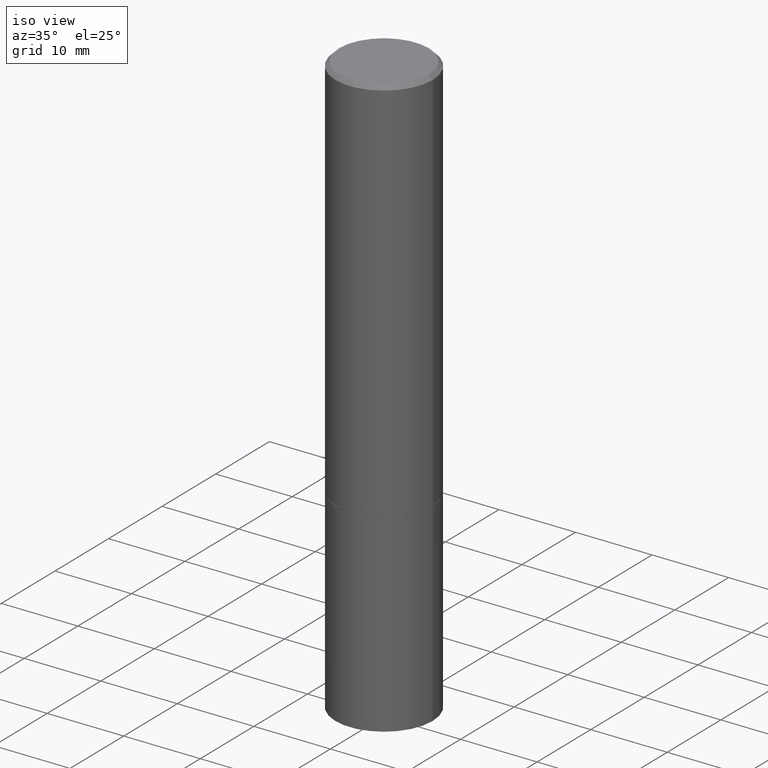
[diagram: clean part render]
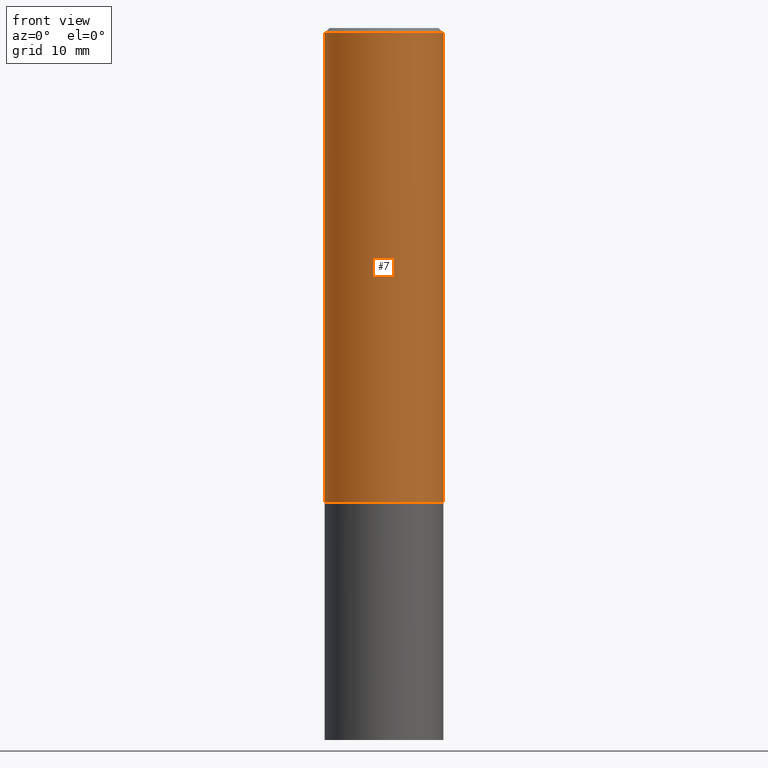
[diagram: tour spotlight — one face highlighted and labeled with its STEP entity id]
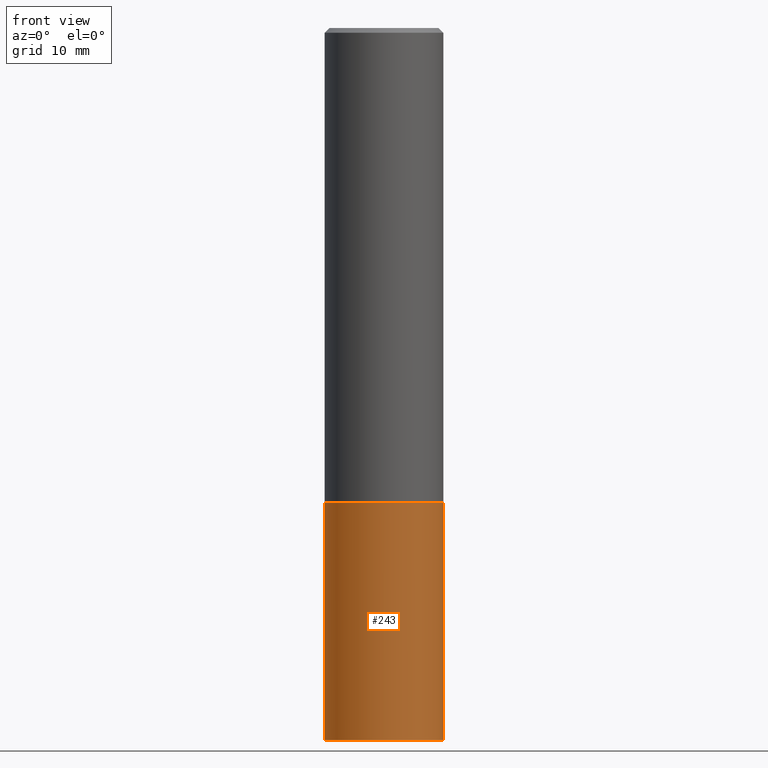
[diagram: tour spotlight — one face highlighted and labeled with its STEP entity id]
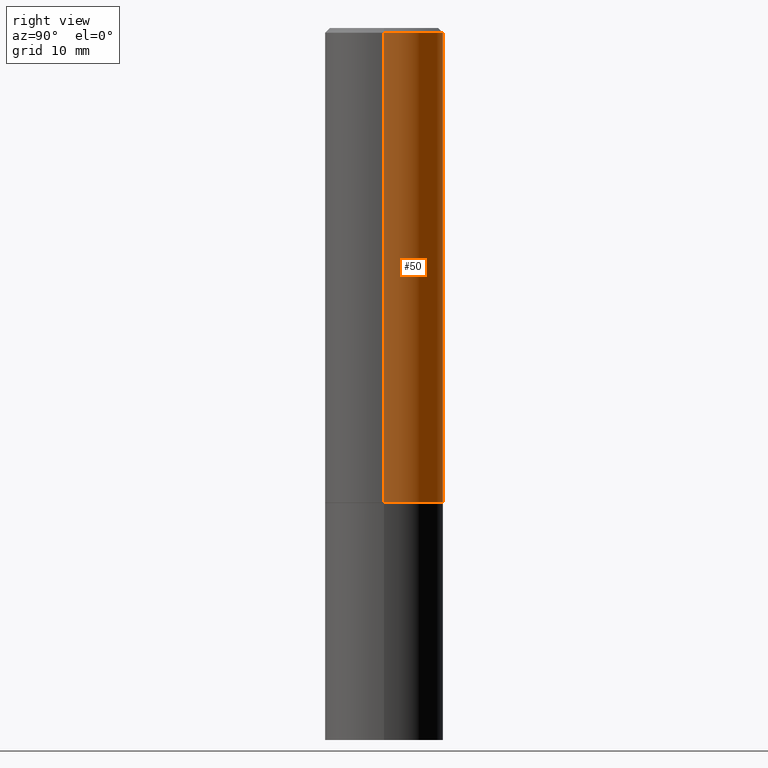
[diagram: tour spotlight — one face highlighted and labeled with its STEP entity id]
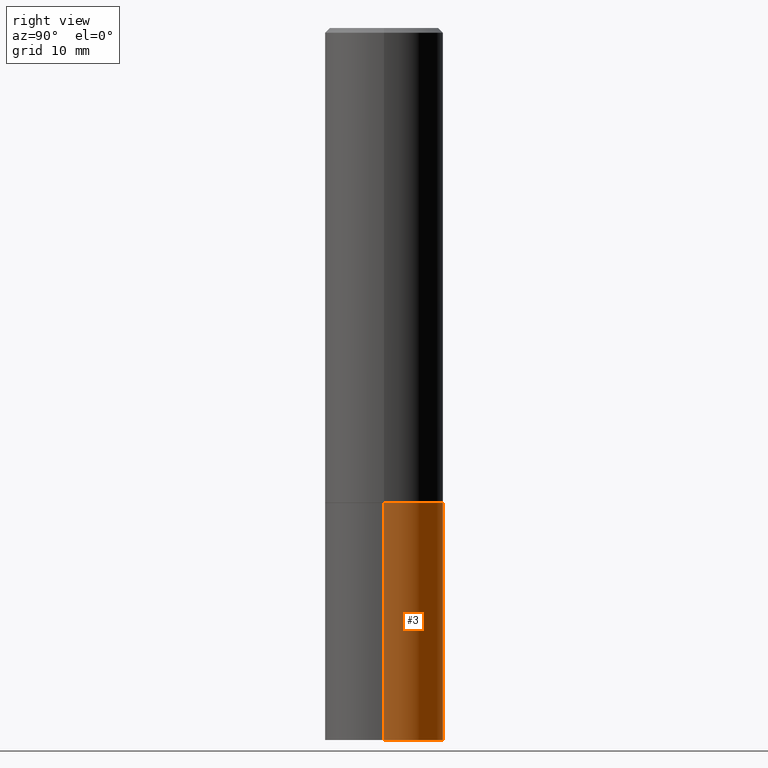
[diagram: tour spotlight — one face highlighted and labeled with its STEP entity id]
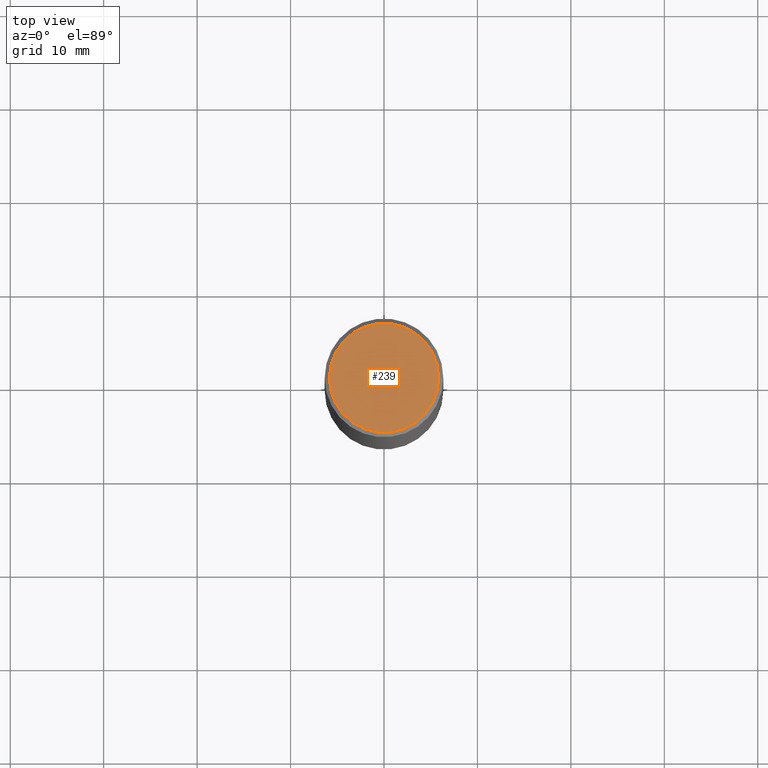
[diagram: tour spotlight — one face highlighted and labeled with its STEP entity id]
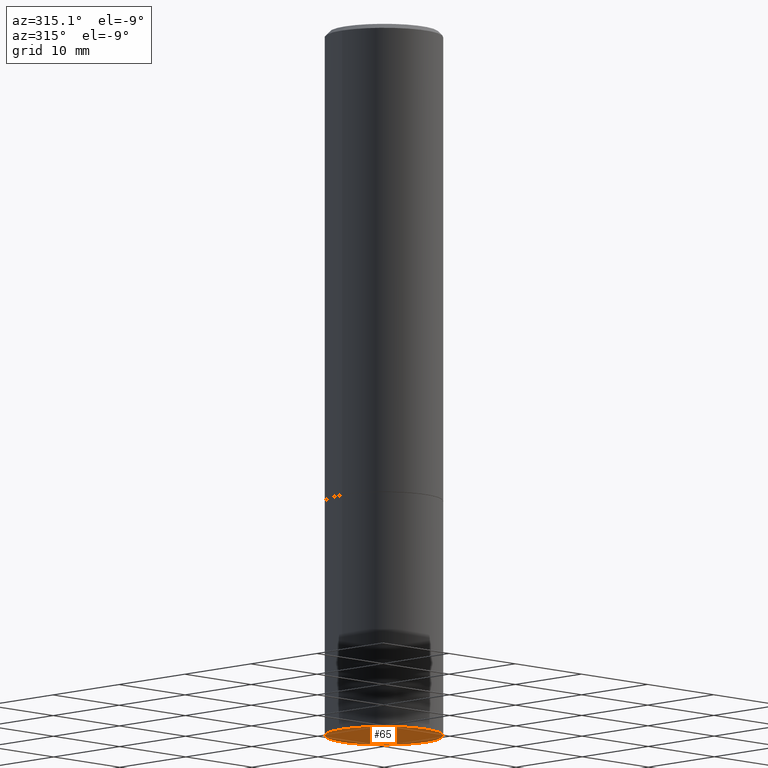
[diagram: tour spotlight — one face highlighted and labeled with its STEP entity id]
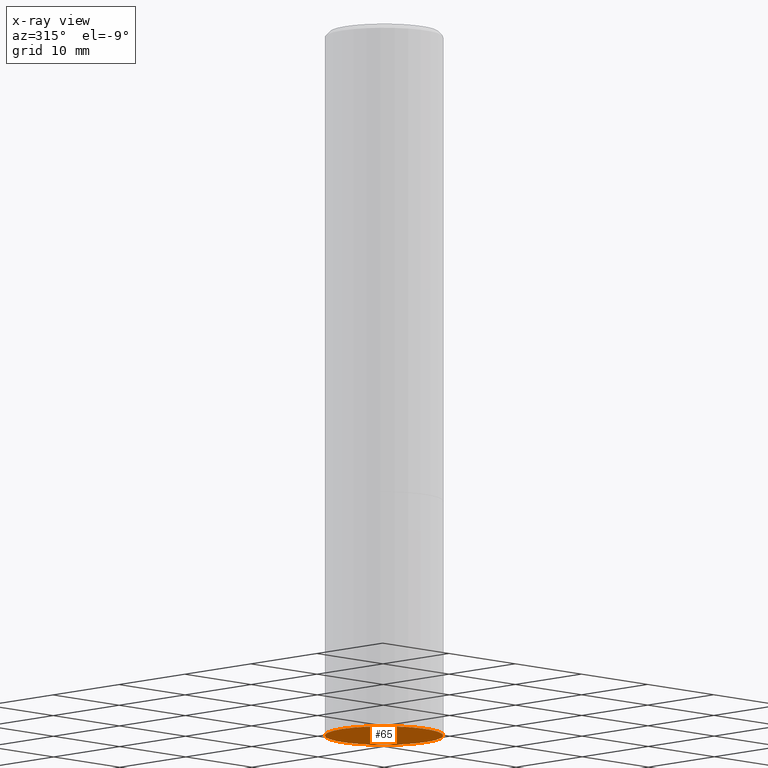
[diagram: x-ray of the same camera — body ghosted, this tour face saturated]
A machine part: a face-by-face anatomy tour. The part has 12 B-rep faces; the first image is the clean iso view, then the 6 largest visible faces are spotlighted one at a time (largest first), each with its STEP entity span.

Face 1 — front view, entity #7. In plain terms, the highlighted cylindrical surface (partial cylindrical patch) has radius 6.35 mm, axis along (-0, 0, 1).
Definition (entity closure, byte-faithful):
#7 = ADVANCED_FACE ( 'NONE', ( #191 ), #263, .T. ) ;
#9 = DIRECTION ( 'NONE',  ( -2.445468806185136597E-29, 3.491481338843145583E-15, 1.000000000000000000 ) ) ;
#15 = ORIENTED_EDGE ( 'NONE', *, *, #43, .T. ) ;
#23 = CARTESIAN_POINT ( 'NONE',  ( -0.2500000000000000000, -1.748293572161902502E-15, -1.999000000000000110 ) ) ;
#27 = DIRECTION ( 'NONE',  ( -2.445468806185136597E-29, 3.491481338843145583E-15, 1.000000000000000000 ) ) ;
#32 = VECTOR ( 'NONE', #349, 39.37007874015748143 ) ;
#40 = CARTESIAN_POINT ( 'NONE',  ( 4.888492143564088712E-29, -6.979471196347448158E-15, -1.999000000000000110 ) ) ;
#43 = EDGE_CURVE ( 'NONE', #181, #56, #303, .T. ) ;
#49 = VERTEX_POINT ( 'NONE', #23 ) ;
#56 = VERTEX_POINT ( 'NONE', #307 ) ;
#59 = CARTESIAN_POINT ( 'NONE',  ( 4.890937612370290675E-31, -6.982962677686316261E-17, -0.02000000000000007327 ) ) ;
#89 = CIRCLE ( 'NONE', #228, 0.2499999999999996669 ) ;
#101 = DIRECTION ( 'NONE',  ( 1.000000000000000000, -6.982962677686266711E-15, 0.000000000000000000 ) ) ;
#110 = ORIENTED_EDGE ( 'NONE', *, *, #154, .T. ) ;
#118 = VERTEX_POINT ( 'NONE', #199 ) ;
#124 = VECTOR ( 'NONE', #178, 39.37007874015748143 ) ;
#131 = CIRCLE ( 'NONE', #314, 0.2500000000000000000 ) ;
#148 = AXIS2_PLACEMENT_3D ( 'NONE', #299, #27, #341 ) ;
#153 = DIRECTION ( 'NONE',  ( -2.445468806185136597E-29, 3.491481338843145583E-15, 1.000000000000000000 ) ) ;
#154 = EDGE_CURVE ( 'NONE', #49, #181, #131, .T. ) ;
#174 = CARTESIAN_POINT ( 'NONE',  ( 0.2499999999999998335, -1.745740669421565494E-15, 1.219044193948983107E-29 ) ) ;
#178 = DIRECTION ( 'NONE',  ( -2.445468806185136877E-29, 3.491481338843145188E-15, 1.000000000000000000 ) ) ;
#181 = VERTEX_POINT ( 'NONE', #323 ) ;
#191 = FACE_OUTER_BOUND ( 'NONE', #205, .T. ) ;
#199 = CARTESIAN_POINT ( 'NONE',  ( -0.2499999999999996669, 1.675911042644701210E-15, -0.02000000000000007327 ) ) ;
#202 = EDGE_CURVE ( 'NONE', #49, #118, #320, .T. ) ;
#205 = EDGE_LOOP ( 'NONE', ( #212, #110, #15, #227 ) ) ;
#212 = ORIENTED_EDGE ( 'NONE', *, *, #202, .F. ) ;
#227 = ORIENTED_EDGE ( 'NONE', *, *, #273, .F. ) ;
#228 = AXIS2_PLACEMENT_3D ( 'NONE', #59, #153, #259 ) ;
#251 = CARTESIAN_POINT ( 'NONE',  ( -0.2499999999999998335, 1.776356839400249281E-15, -1.229733772563725605E-29 ) ) ;
#259 = DIRECTION ( 'NONE',  ( 1.000000000000000000, -6.982962677686266711E-15, 0.000000000000000000 ) ) ;
#263 = CYLINDRICAL_SURFACE ( 'NONE', #148, 0.2499999999999998335 ) ;
#273 = EDGE_CURVE ( 'NONE', #118, #56, #89, .T. ) ;
#299 = CARTESIAN_POINT ( 'NONE',  ( 0.000000000000000000, 0.000000000000000000, 0.000000000000000000 ) ) ;
#303 = LINE ( 'NONE', #174, #124 ) ;
#307 = CARTESIAN_POINT ( 'NONE',  ( 0.2499999999999996669, -1.784954126219743428E-15, -0.02000000000000007327 ) ) ;
#314 = AXIS2_PLACEMENT_3D ( 'NONE', #40, #9, #101 ) ;
#320 = LINE ( 'NONE', #251, #32 ) ;
#323 = CARTESIAN_POINT ( 'NONE',  ( 0.2500000000000000000, -8.725211865769015625E-15, -1.999000000000000110 ) ) ;
#341 = DIRECTION ( 'NONE',  ( 1.000000000000000000, -6.982962677686266711E-15, 4.876176775795935793E-29 ) ) ;
#349 = DIRECTION ( 'NONE',  ( -2.445468806185136877E-29, 3.491481338843145188E-15, 1.000000000000000000 ) ) ;

Face 2 — front view, entity #243. In plain terms, the highlighted cylindrical surface (partial cylindrical patch) has radius 6.35 mm, axis along (-0, 0, 1).
Definition (entity closure, byte-faithful):
#8 = DIRECTION ( 'NONE',  ( -2.445468806185136877E-29, 3.491481338843145188E-15, 1.000000000000000000 ) ) ;
#13 = CARTESIAN_POINT ( 'NONE',  ( -0.2500000000000000000, -6.952346507707613689E-15, -2.000000000000000444 ) ) ;
#19 = FACE_OUTER_BOUND ( 'NONE', #123, .T. ) ;
#22 = VERTEX_POINT ( 'NONE', #130 ) ;
#39 = ORIENTED_EDGE ( 'NONE', *, *, #220, .T. ) ;
#57 = LINE ( 'NONE', #185, #287 ) ;
#69 = DIRECTION ( 'NONE',  ( -2.445468806185136597E-29, 3.491481338843145583E-15, 1.000000000000000000 ) ) ;
#84 = LINE ( 'NONE', #276, #301 ) ;
#87 = CARTESIAN_POINT ( 'NONE',  ( 0.000000000000000000, 0.000000000000000000, 0.000000000000000000 ) ) ;
#98 = CIRCLE ( 'NONE', #183, 0.2500000000000000000 ) ;
#102 = VERTEX_POINT ( 'NONE', #171 ) ;
#107 = CIRCLE ( 'NONE', #332, 0.2500000000000000000 ) ;
#108 = DIRECTION ( 'NONE',  ( 1.000000000000000000, -6.982962677686262766E-15, 0.000000000000000000 ) ) ;
#119 = DIRECTION ( 'NONE',  ( 1.000000000000000000, -6.982962677686266711E-15, 4.876176775795935793E-29 ) ) ;
#122 = CYLINDRICAL_SURFACE ( 'NONE', #173, 0.2500000000000000000 ) ;
#123 = EDGE_LOOP ( 'NONE', ( #257, #39, #285, #360 ) ) ;
#130 = CARTESIAN_POINT ( 'NONE',  ( -0.2500000000000000000, -6.952346507707613689E-15, -3.000000000000000444 ) ) ;
#139 = CARTESIAN_POINT ( 'NONE',  ( 7.336406418555409790E-29, -1.047444401652943635E-14, -3.000000000000000444 ) ) ;
#143 = EDGE_CURVE ( 'NONE', #22, #339, #57, .T. ) ;
#150 = DIRECTION ( 'NONE',  ( -2.445468806185136597E-29, 3.491481338843145583E-15, 1.000000000000000000 ) ) ;
#167 = CARTESIAN_POINT ( 'NONE',  ( 0.2500000000000000000, -8.728703347107858632E-15, -2.000000000000000444 ) ) ;
#171 = CARTESIAN_POINT ( 'NONE',  ( 0.2500000000000000000, -1.222018468595100303E-14, -3.000000000000000444 ) ) ;
#173 = AXIS2_PLACEMENT_3D ( 'NONE', #87, #150, #119 ) ;
#183 = AXIS2_PLACEMENT_3D ( 'NONE', #186, #359, #236 ) ;
#185 = CARTESIAN_POINT ( 'NONE',  ( -0.2500000000000000000, 1.776356839400250465E-15, -1.229733772563726445E-29 ) ) ;
#186 = CARTESIAN_POINT ( 'NONE',  ( 4.890937612370273754E-29, -6.982962677686291954E-15, -2.000000000000000444 ) ) ;
#206 = VERTEX_POINT ( 'NONE', #167 ) ;
#220 = EDGE_CURVE ( 'NONE', #22, #102, #107, .T. ) ;
#236 = DIRECTION ( 'NONE',  ( 1.000000000000000000, -6.982962677686266711E-15, 0.000000000000000000 ) ) ;
#243 = ADVANCED_FACE ( 'NONE', ( #19 ), #122, .T. ) ;
#257 = ORIENTED_EDGE ( 'NONE', *, *, #143, .F. ) ;
#274 = DIRECTION ( 'NONE',  ( -2.445468806185136877E-29, 3.491481338843145188E-15, 1.000000000000000000 ) ) ;
#276 = CARTESIAN_POINT ( 'NONE',  ( 0.2500000000000000000, -1.745740669421566678E-15, 1.219044193948983948E-29 ) ) ;
#284 = EDGE_CURVE ( 'NONE', #339, #206, #98, .T. ) ;
#285 = ORIENTED_EDGE ( 'NONE', *, *, #300, .T. ) ;
#287 = VECTOR ( 'NONE', #274, 39.37007874015748143 ) ;
#300 = EDGE_CURVE ( 'NONE', #102, #206, #84, .T. ) ;
#301 = VECTOR ( 'NONE', #8, 39.37007874015748143 ) ;
#332 = AXIS2_PLACEMENT_3D ( 'NONE', #139, #69, #108 ) ;
#339 = VERTEX_POINT ( 'NONE', #13 ) ;
#359 = DIRECTION ( 'NONE',  ( -2.445468806185136597E-29, 3.491481338843145583E-15, 1.000000000000000000 ) ) ;
#360 = ORIENTED_EDGE ( 'NONE', *, *, #284, .F. ) ;

Face 3 — right view, entity #50. In plain terms, the highlighted cylindrical surface (partial cylindrical patch) has radius 6.35 mm, axis along (-0, 0, 1).
Definition (entity closure, byte-faithful):
#17 = ORIENTED_EDGE ( 'NONE', *, *, #179, .T. ) ;
#23 = CARTESIAN_POINT ( 'NONE',  ( -0.2500000000000000000, -1.748293572161902502E-15, -1.999000000000000110 ) ) ;
#32 = VECTOR ( 'NONE', #349, 39.37007874015748143 ) ;
#36 = CARTESIAN_POINT ( 'NONE',  ( 4.888492143564088712E-29, -6.979471196347448158E-15, -1.999000000000000110 ) ) ;
#43 = EDGE_CURVE ( 'NONE', #181, #56, #303, .T. ) ;
#47 = DIRECTION ( 'NONE',  ( 1.000000000000000000, -6.982962677686266711E-15, 0.000000000000000000 ) ) ;
#49 = VERTEX_POINT ( 'NONE', #23 ) ;
#50 = ADVANCED_FACE ( 'NONE', ( #75 ), #265, .T. ) ;
#55 = DIRECTION ( 'NONE',  ( 1.000000000000000000, -6.982962677686266711E-15, 4.876176775795935793E-29 ) ) ;
#56 = VERTEX_POINT ( 'NONE', #307 ) ;
#70 = CARTESIAN_POINT ( 'NONE',  ( 4.890937612370290675E-31, -6.982962677686316261E-17, -0.02000000000000007327 ) ) ;
#75 = FACE_OUTER_BOUND ( 'NONE', #342, .T. ) ;
#103 = EDGE_CURVE ( 'NONE', #56, #118, #277, .T. ) ;
#104 = ORIENTED_EDGE ( 'NONE', *, *, #43, .F. ) ;
#115 = AXIS2_PLACEMENT_3D ( 'NONE', #70, #279, #47 ) ;
#118 = VERTEX_POINT ( 'NONE', #199 ) ;
#124 = VECTOR ( 'NONE', #178, 39.37007874015748143 ) ;
#125 = AXIS2_PLACEMENT_3D ( 'NONE', #36, #161, #133 ) ;
#133 = DIRECTION ( 'NONE',  ( 1.000000000000000000, -6.982962677686266711E-15, 0.000000000000000000 ) ) ;
#161 = DIRECTION ( 'NONE',  ( -2.445468806185136597E-29, 3.491481338843145583E-15, 1.000000000000000000 ) ) ;
#174 = CARTESIAN_POINT ( 'NONE',  ( 0.2499999999999998335, -1.745740669421565494E-15, 1.219044193948983107E-29 ) ) ;
#178 = DIRECTION ( 'NONE',  ( -2.445468806185136877E-29, 3.491481338843145188E-15, 1.000000000000000000 ) ) ;
#179 = EDGE_CURVE ( 'NONE', #181, #49, #353, .T. ) ;
#181 = VERTEX_POINT ( 'NONE', #323 ) ;
#197 = ORIENTED_EDGE ( 'NONE', *, *, #202, .T. ) ;
#199 = CARTESIAN_POINT ( 'NONE',  ( -0.2499999999999996669, 1.675911042644701210E-15, -0.02000000000000007327 ) ) ;
#202 = EDGE_CURVE ( 'NONE', #49, #118, #320, .T. ) ;
#218 = AXIS2_PLACEMENT_3D ( 'NONE', #245, #361, #55 ) ;
#229 = ORIENTED_EDGE ( 'NONE', *, *, #103, .F. ) ;
#245 = CARTESIAN_POINT ( 'NONE',  ( 0.000000000000000000, 0.000000000000000000, 0.000000000000000000 ) ) ;
#251 = CARTESIAN_POINT ( 'NONE',  ( -0.2499999999999998335, 1.776356839400249281E-15, -1.229733772563725605E-29 ) ) ;
#265 = CYLINDRICAL_SURFACE ( 'NONE', #218, 0.2499999999999998335 ) ;
#277 = CIRCLE ( 'NONE', #115, 0.2499999999999996669 ) ;
#279 = DIRECTION ( 'NONE',  ( -2.445468806185136597E-29, 3.491481338843145583E-15, 1.000000000000000000 ) ) ;
#303 = LINE ( 'NONE', #174, #124 ) ;
#307 = CARTESIAN_POINT ( 'NONE',  ( 0.2499999999999996669, -1.784954126219743428E-15, -0.02000000000000007327 ) ) ;
#320 = LINE ( 'NONE', #251, #32 ) ;
#323 = CARTESIAN_POINT ( 'NONE',  ( 0.2500000000000000000, -8.725211865769015625E-15, -1.999000000000000110 ) ) ;
#342 = EDGE_LOOP ( 'NONE', ( #17, #197, #229, #104 ) ) ;
#349 = DIRECTION ( 'NONE',  ( -2.445468806185136877E-29, 3.491481338843145188E-15, 1.000000000000000000 ) ) ;
#353 = CIRCLE ( 'NONE', #125, 0.2500000000000000000 ) ;
#361 = DIRECTION ( 'NONE',  ( -2.445468806185136597E-29, 3.491481338843145583E-15, 1.000000000000000000 ) ) ;

Face 4 — right view, entity #3. In plain terms, the highlighted cylindrical surface (partial cylindrical patch) has radius 6.35 mm, axis along (-0, 0, 1).
Definition (entity closure, byte-faithful):
#3 = ADVANCED_FACE ( 'NONE', ( #180 ), #85, .T. ) ;
#8 = DIRECTION ( 'NONE',  ( -2.445468806185136877E-29, 3.491481338843145188E-15, 1.000000000000000000 ) ) ;
#13 = CARTESIAN_POINT ( 'NONE',  ( -0.2500000000000000000, -6.952346507707613689E-15, -2.000000000000000444 ) ) ;
#22 = VERTEX_POINT ( 'NONE', #130 ) ;
#25 = AXIS2_PLACEMENT_3D ( 'NONE', #210, #62, #159 ) ;
#35 = CARTESIAN_POINT ( 'NONE',  ( 7.336406418555409790E-29, -1.047444401652943635E-14, -3.000000000000000444 ) ) ;
#38 = ORIENTED_EDGE ( 'NONE', *, *, #184, .T. ) ;
#51 = ORIENTED_EDGE ( 'NONE', *, *, #352, .F. ) ;
#57 = LINE ( 'NONE', #185, #287 ) ;
#62 = DIRECTION ( 'NONE',  ( -2.445468806185136597E-29, 3.491481338843145583E-15, 1.000000000000000000 ) ) ;
#63 = DIRECTION ( 'NONE',  ( -2.445468806185136597E-29, 3.491481338843145583E-15, 1.000000000000000000 ) ) ;
#82 = DIRECTION ( 'NONE',  ( -2.445468806185136597E-29, 3.491481338843145583E-15, 1.000000000000000000 ) ) ;
#84 = LINE ( 'NONE', #276, #301 ) ;
#85 = CYLINDRICAL_SURFACE ( 'NONE', #25, 0.2500000000000000000 ) ;
#86 = ORIENTED_EDGE ( 'NONE', *, *, #143, .T. ) ;
#99 = EDGE_LOOP ( 'NONE', ( #38, #86, #51, #211 ) ) ;
#102 = VERTEX_POINT ( 'NONE', #171 ) ;
#130 = CARTESIAN_POINT ( 'NONE',  ( -0.2500000000000000000, -6.952346507707613689E-15, -3.000000000000000444 ) ) ;
#143 = EDGE_CURVE ( 'NONE', #22, #339, #57, .T. ) ;
#159 = DIRECTION ( 'NONE',  ( 1.000000000000000000, -6.982962677686266711E-15, 4.876176775795935793E-29 ) ) ;
#164 = DIRECTION ( 'NONE',  ( 1.000000000000000000, -6.982962677686262766E-15, 0.000000000000000000 ) ) ;
#167 = CARTESIAN_POINT ( 'NONE',  ( 0.2500000000000000000, -8.728703347107858632E-15, -2.000000000000000444 ) ) ;
#171 = CARTESIAN_POINT ( 'NONE',  ( 0.2500000000000000000, -1.222018468595100303E-14, -3.000000000000000444 ) ) ;
#175 = DIRECTION ( 'NONE',  ( 1.000000000000000000, -6.982962677686266711E-15, 0.000000000000000000 ) ) ;
#180 = FACE_OUTER_BOUND ( 'NONE', #99, .T. ) ;
#184 = EDGE_CURVE ( 'NONE', #102, #22, #187, .T. ) ;
#185 = CARTESIAN_POINT ( 'NONE',  ( -0.2500000000000000000, 1.776356839400250465E-15, -1.229733772563726445E-29 ) ) ;
#187 = CIRCLE ( 'NONE', #213, 0.2500000000000000000 ) ;
#206 = VERTEX_POINT ( 'NONE', #167 ) ;
#210 = CARTESIAN_POINT ( 'NONE',  ( 0.000000000000000000, 0.000000000000000000, 0.000000000000000000 ) ) ;
#211 = ORIENTED_EDGE ( 'NONE', *, *, #300, .F. ) ;
#213 = AXIS2_PLACEMENT_3D ( 'NONE', #35, #63, #164 ) ;
#269 = AXIS2_PLACEMENT_3D ( 'NONE', #328, #82, #175 ) ;
#274 = DIRECTION ( 'NONE',  ( -2.445468806185136877E-29, 3.491481338843145188E-15, 1.000000000000000000 ) ) ;
#276 = CARTESIAN_POINT ( 'NONE',  ( 0.2500000000000000000, -1.745740669421566678E-15, 1.219044193948983948E-29 ) ) ;
#287 = VECTOR ( 'NONE', #274, 39.37007874015748143 ) ;
#300 = EDGE_CURVE ( 'NONE', #102, #206, #84, .T. ) ;
#301 = VECTOR ( 'NONE', #8, 39.37007874015748143 ) ;
#328 = CARTESIAN_POINT ( 'NONE',  ( 4.890937612370273754E-29, -6.982962677686291954E-15, -2.000000000000000444 ) ) ;
#339 = VERTEX_POINT ( 'NONE', #13 ) ;
#350 = CIRCLE ( 'NONE', #269, 0.2500000000000000000 ) ;
#352 = EDGE_CURVE ( 'NONE', #206, #339, #350, .T. ) ;

Face 5 — top view, entity #239. In plain terms, the highlighted planar face has unit normal (0, -0, -1).
Definition (entity closure, byte-faithful):
#31 = DIRECTION ( 'NONE',  ( 1.000000000000000000, -6.982962677686267499E-15, 4.876225828469316729E-29 ) ) ;
#41 = FACE_OUTER_BOUND ( 'NONE', #109, .T. ) ;
#79 = CARTESIAN_POINT ( 'NONE',  ( -0.2299999999999996214, 1.640996229256269955E-15, 4.268512490089056766E-18 ) ) ;
#81 = DIRECTION ( 'NONE',  ( -1.000000000000000000, 6.982962677686265922E-15, -4.876176775795935793E-29 ) ) ;
#91 = CARTESIAN_POINT ( 'NONE',  ( -1.043851414335219820E-46, 1.490343170380447200E-32, 4.268512490100411279E-18 ) ) ;
#109 = EDGE_LOOP ( 'NONE', ( #147, #289 ) ) ;
#111 = DIRECTION ( 'NONE',  ( 2.438088387897960049E-29, -3.491481338843145188E-15, -1.000000000000000000 ) ) ;
#138 = CIRCLE ( 'NONE', #151, 0.2299999999999996214 ) ;
#145 = DIRECTION ( 'NONE',  ( -2.445468806185136597E-29, 3.491481338843145583E-15, 1.000000000000000000 ) ) ;
#147 = ORIENTED_EDGE ( 'NONE', *, *, #340, .T. ) ;
#151 = AXIS2_PLACEMENT_3D ( 'NONE', #354, #145, #335 ) ;
#157 = VERTEX_POINT ( 'NONE', #79 ) ;
#158 = EDGE_CURVE ( 'NONE', #176, #157, #240, .T. ) ;
#176 = VERTEX_POINT ( 'NONE', #271 ) ;
#237 = DIRECTION ( 'NONE',  ( -2.445468806185136597E-29, 3.491481338843145583E-15, 1.000000000000000000 ) ) ;
#239 = ADVANCED_FACE ( 'NONE', ( #41 ), #254, .F. ) ;
#240 = CIRCLE ( 'NONE', #282, 0.2299999999999996214 ) ;
#254 = PLANE ( 'NONE',  #321 ) ;
#271 = CARTESIAN_POINT ( 'NONE',  ( 0.2299999999999996214, -1.681434332853596842E-15, 4.268512490111905999E-18 ) ) ;
#281 = CARTESIAN_POINT ( 'NONE',  ( 1.606081415867838504E-15, 0.2299999999999996214, -8.009064516888719966E-16 ) ) ;
#282 = AXIS2_PLACEMENT_3D ( 'NONE', #91, #237, #31 ) ;
#289 = ORIENTED_EDGE ( 'NONE', *, *, #158, .T. ) ;
#321 = AXIS2_PLACEMENT_3D ( 'NONE', #281, #111, #81 ) ;
#335 = DIRECTION ( 'NONE',  ( 1.000000000000000000, -6.982962677686267499E-15, 4.876225828469316729E-29 ) ) ;
#340 = EDGE_CURVE ( 'NONE', #157, #176, #138, .T. ) ;
#354 = CARTESIAN_POINT ( 'NONE',  ( -1.043851414335219820E-46, 1.490343170380447200E-32, 4.268512490100411279E-18 ) ) ;

Face 6 — auxiliary view, entity #65. An x-ray twin of the same camera follows (body ghosted, this face saturated) — the face is partly hidden behind the body. In plain terms, the highlighted planar face has unit normal (0, -0, -1).
Definition (entity closure, byte-faithful):
#22 = VERTEX_POINT ( 'NONE', #130 ) ;
#35 = CARTESIAN_POINT ( 'NONE',  ( 7.336406418555409790E-29, -1.047444401652943635E-14, -3.000000000000000444 ) ) ;
#63 = DIRECTION ( 'NONE',  ( -2.445468806185136597E-29, 3.491481338843145583E-15, 1.000000000000000000 ) ) ;
#65 = ADVANCED_FACE ( 'NONE', ( #260 ), #105, .T. ) ;
#69 = DIRECTION ( 'NONE',  ( -2.445468806185136597E-29, 3.491481338843145583E-15, 1.000000000000000000 ) ) ;
#102 = VERTEX_POINT ( 'NONE', #171 ) ;
#105 = PLANE ( 'NONE',  #136 ) ;
#107 = CIRCLE ( 'NONE', #332, 0.2500000000000000000 ) ;
#108 = DIRECTION ( 'NONE',  ( 1.000000000000000000, -6.982962677686262766E-15, 0.000000000000000000 ) ) ;
#130 = CARTESIAN_POINT ( 'NONE',  ( -0.2500000000000000000, -6.952346507707613689E-15, -3.000000000000000444 ) ) ;
#136 = AXIS2_PLACEMENT_3D ( 'NONE', #209, #170, #310 ) ;
#139 = CARTESIAN_POINT ( 'NONE',  ( 7.336406418555409790E-29, -1.047444401652943635E-14, -3.000000000000000444 ) ) ;
#149 = ORIENTED_EDGE ( 'NONE', *, *, #184, .F. ) ;
#164 = DIRECTION ( 'NONE',  ( 1.000000000000000000, -6.982962677686262766E-15, 0.000000000000000000 ) ) ;
#170 = DIRECTION ( 'NONE',  ( 2.438088387897960049E-29, -3.491481338843145188E-15, -1.000000000000000000 ) ) ;
#171 = CARTESIAN_POINT ( 'NONE',  ( 0.2500000000000000000, -1.222018468595100303E-14, -3.000000000000000444 ) ) ;
#184 = EDGE_CURVE ( 'NONE', #102, #22, #187, .T. ) ;
#187 = CIRCLE ( 'NONE', #213, 0.2500000000000000000 ) ;
#190 = EDGE_LOOP ( 'NONE', ( #149, #355 ) ) ;
#209 = CARTESIAN_POINT ( 'NONE',  ( 1.745740669421639647E-15, 0.2499999999999895084, -3.000000000000001332 ) ) ;
#213 = AXIS2_PLACEMENT_3D ( 'NONE', #35, #63, #164 ) ;
#220 = EDGE_CURVE ( 'NONE', #22, #102, #107, .T. ) ;
#260 = FACE_OUTER_BOUND ( 'NONE', #190, .T. ) ;
#310 = DIRECTION ( 'NONE',  ( -1.000000000000000000, 6.982962677686265922E-15, -4.876176775795935793E-29 ) ) ;
#332 = AXIS2_PLACEMENT_3D ( 'NONE', #139, #69, #108 ) ;
#355 = ORIENTED_EDGE ( 'NONE', *, *, #220, .F. ) ;